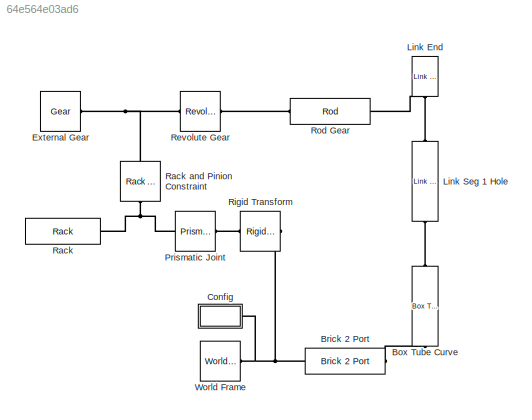
MODEL slx_64e564e03ad6
KIND model
CONFIG AbsTol = auto
CONFIG EnableMultiTasking = on
CONFIG FixedStep = auto
CONFIG MaxStep = auto
CONFIG MinStep = auto
CONFIG RelTol = 1e-3
CONFIG SampleTimeConstraint = Unconstrained
CONFIG Solver = VariableStepAuto
CONFIG SolverName = VariableStepAuto
CONFIG StartTime = 0.0
CONFIG StopTime = 10.0
BLOCK [Reference] Box Tube Curve  REF=Multibody_Parts_Lib/Extrusions/Box Tube Curve
  Ports = [0, 0, 0, 0, 0, 1, 1]
  SourceBlock = Multibody_Parts_Lib/Extrusions/Box Tube Curve
  SourceProductName = Simscape Multibody Parts Library
  SourceType = Box Tube with Curve
BLOCK [Reference] Brick 2 Port  REF=Multibody_Parts_Lib/Basic/Brick 2 Port
  Ports = [0, 0, 0, 0, 0, 1, 1]
  SourceBlock = Multibody_Parts_Lib/Basic/Brick 2 Port
  SourceProductName = Simscape Multibody Parts Library
  SourceType = Brick with 2 Interface Frames
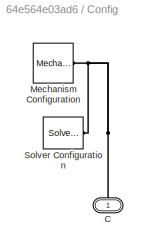
BLOCK [SubSystem] Config
  Ports = [0, 0, 0, 0, 0, 1]
  RequestExecContextInheritance = off
BLOCK [PMIOPort] Config/C
  Side = Left
BLOCK [Reference] Config/Mechanism Configuration  REF=sm_lib/Utilities/Mechanism
Configuration
  Ports = [0, 0, 0, 0, 0, 0, 1]
  SourceBlock = sm_lib/Utilities/Mechanism\nConfiguration
  SourceProductBaseCode = MS
  SourceProductName = Simscape Multibody
  SourceType = Mechanism\nConfiguration
BLOCK [Reference] Config/Solver Configuration  REF=nesl_utility/Solver
Configuration
  Ports = [0, 0, 0, 0, 0, 0, 1]
  SourceBlock = nesl_utility/Solver\nConfiguration
  SourceProductBaseCode = SS
  SourceProductName = Simscape
  SourceType = Solver\nConfiguration
BLOCK [Reference] External Gear  REF=Multibody_Parts_Lib/Gears/Gear
  Ports = [0, 0, 0, 0, 0, 0, 1]
  SourceBlock = Multibody_Parts_Lib/Gears/Gear
  SourceProductName = Simscape Multibody Parts Library
  SourceType = Gear
BLOCK [Reference] Link End  REF=Multibody_Parts_Lib/Linkages/Link End
  Ports = [0, 0, 0, 0, 0, 1]
  SourceBlock = Multibody_Parts_Lib/Linkages/Link End
  SourceProductName = Simscape Multibody Parts Library
  SourceType = Link End
BLOCK [Reference] Link Seg 1 Hole  REF=Multibody_Parts_Lib/Linkages/Link Seg 1 Hole
  Ports = [0, 0, 0, 0, 0, 1, 1]
  SourceBlock = Multibody_Parts_Lib/Linkages/Link Seg 1 Hole
  SourceProductName = Simscape Multibody Parts Library
  SourceType = Link Segment with 1 Hole
BLOCK [Reference] Prismatic Joint  REF=sm_lib/Joints/Prismatic
Joint
  Ports = [0, 0, 0, 0, 0, 1, 1]
  SourceBlock = sm_lib/Joints/Prismatic\nJoint
  SourceProductBaseCode = MS
  SourceProductName = Simscape Multibody
  SourceType = Prismatic\nJoint
BLOCK [Reference] Rack  REF=Multibody_Parts_Lib/Gears/Rack
  Ports = [0, 0, 0, 0, 0, 0, 1]
  SourceBlock = Multibody_Parts_Lib/Gears/Rack
  SourceProductName = Simscape Multibody Parts Library
  SourceType = Rack
BLOCK [Reference] Rack and Pinion Constraint  REF=sm_lib/Gears and
Couplings/Gears/Rack and Pinion
Constraint
  Ports = [0, 0, 0, 0, 0, 1, 1]
  SourceBlock = sm_lib/Gears and\nCouplings/Gears/Rack and Pinion\nConstraint
  SourceProductBaseCode = MS
  SourceProductName = Simscape Multibody
  SourceType = Rack and Pinion\nConstraint
BLOCK [Reference] Revolute Gear  REF=sm_lib/Joints/Revolute Joint
  Ports = [0, 0, 0, 0, 0, 1, 1]
  SourceBlock = sm_lib/Joints/Revolute Joint
  SourceProductBaseCode = MS
  SourceProductName = Simscape Multibody
  SourceType = Revolute Joint
BLOCK [Reference] Rigid Transform  REF=sm_lib/Frames and
Transforms/Rigid
Transform
  Ports = [0, 0, 0, 0, 0, 1, 1]
  SourceBlock = sm_lib/Frames and\nTransforms/Rigid\nTransform
  SourceProductBaseCode = MS
  SourceProductName = Simscape Multibody
  SourceType = Rigid\nTransform
BLOCK [Reference] Rod Gear  REF=Multibody_Parts_Lib/Basic/Rod
  Ports = [0, 0, 0, 0, 0, 1, 1]
  SourceBlock = Multibody_Parts_Lib/Basic/Rod
  SourceProductName = Simscape Multibody Parts Library
  SourceType = Rod
BLOCK [Reference] World Frame  REF=sm_lib/Frames and
Transforms/World Frame
  Ports = [0, 0, 0, 0, 0, 0, 1]
  SourceBlock = sm_lib/Frames and\nTransforms/World Frame
  SourceProductBaseCode = MS
  SourceProductName = Simscape Multibody
  SourceType = World Frame
PLINE Box Tube Curve:LConn1 -- Brick 2 Port:LConn1
PLINE Box Tube Curve:RConn1 -- Link Seg 1 Hole:LConn1
PNET net1: Brick 2 Port:RConn1 -- Config:LConn1 -- Rigid Transform:LConn1 -- World Frame:RConn1
PNET net2: Config/C:RConn1 -- Config/Mechanism Configuration:RConn1 -- Config/Solver Configuration:RConn1
PNET net3: External Gear:RConn1 -- Rack and Pinion Constraint:LConn1 -- Revolute Gear:RConn1
PNET net4: Link End:LConn1 -- Link Seg 1 Hole:RConn1 -- Rod Gear:LConn1
PLINE Prismatic Joint:LConn1 -- Rigid Transform:RConn1
PNET net5: Prismatic Joint:RConn1 -- Rack and Pinion Constraint:RConn1 -- Rack:RConn1
PLINE Revolute Gear:LConn1 -- Rod Gear:RConn1
note: PNET lines group multi-terminal physical nets as a canonical sorted terminal list (undirected conserving connections); 2-terminal nets keep the pairwise PLINE form
